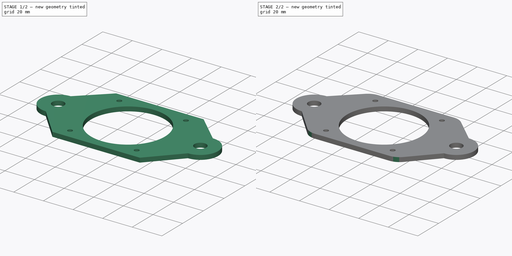
[diagram: build sequence overview — one tinted view per stage of 2, left to right]
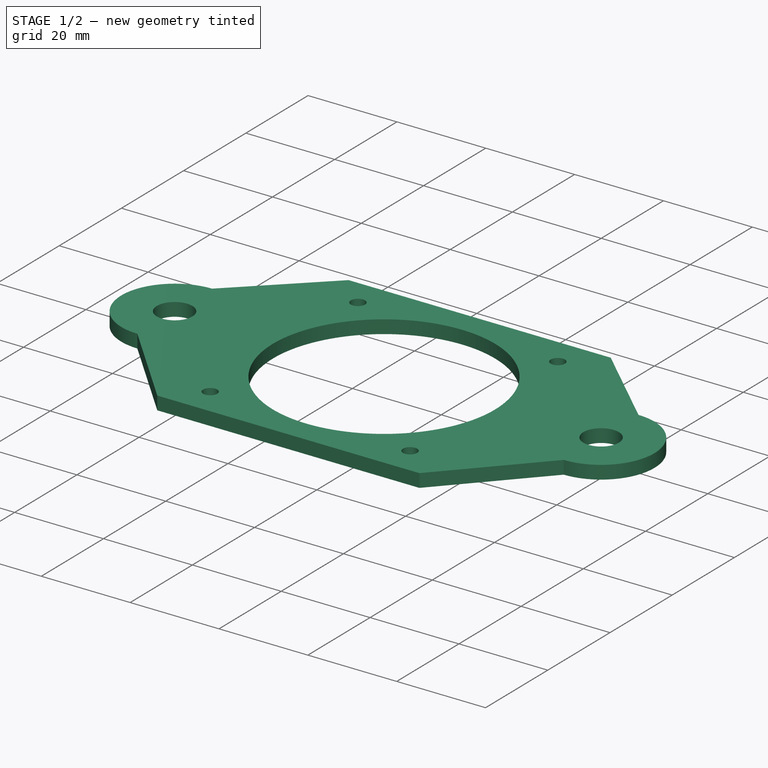
[diagram: stage 1 of 2 — iso view after this stage's code; geometry added in this stage tinted green]
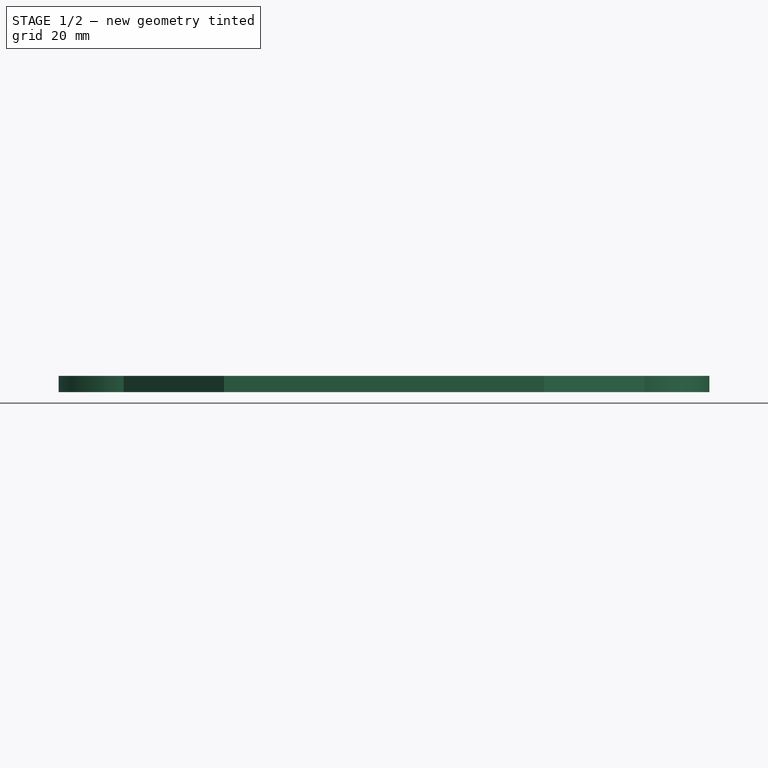
[diagram: stage 1 of 2 — front view after this stage's code; geometry added in this stage tinted green]
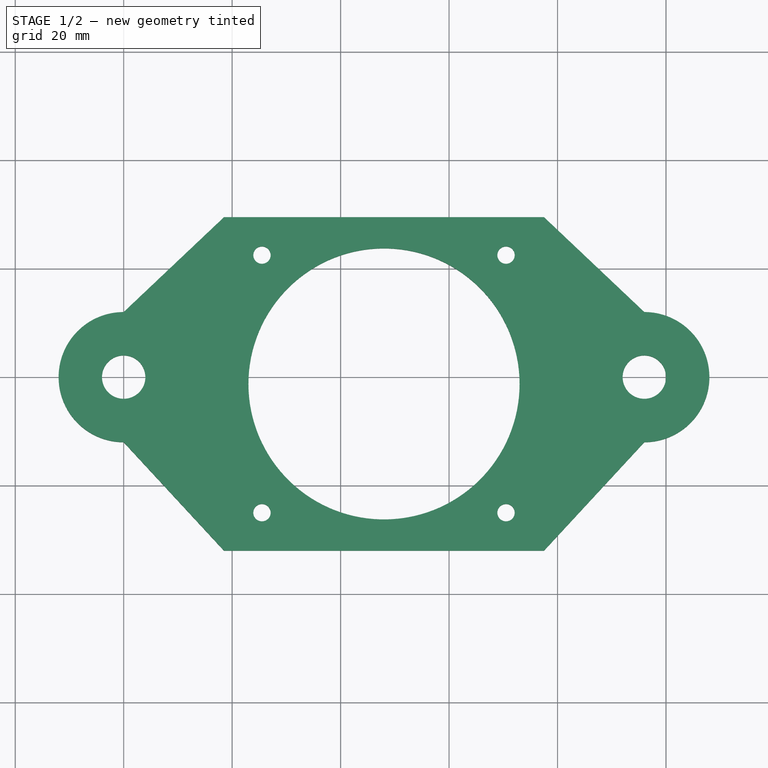
[diagram: stage 1 of 2 — top view after this stage's code; geometry added in this stage tinted green]
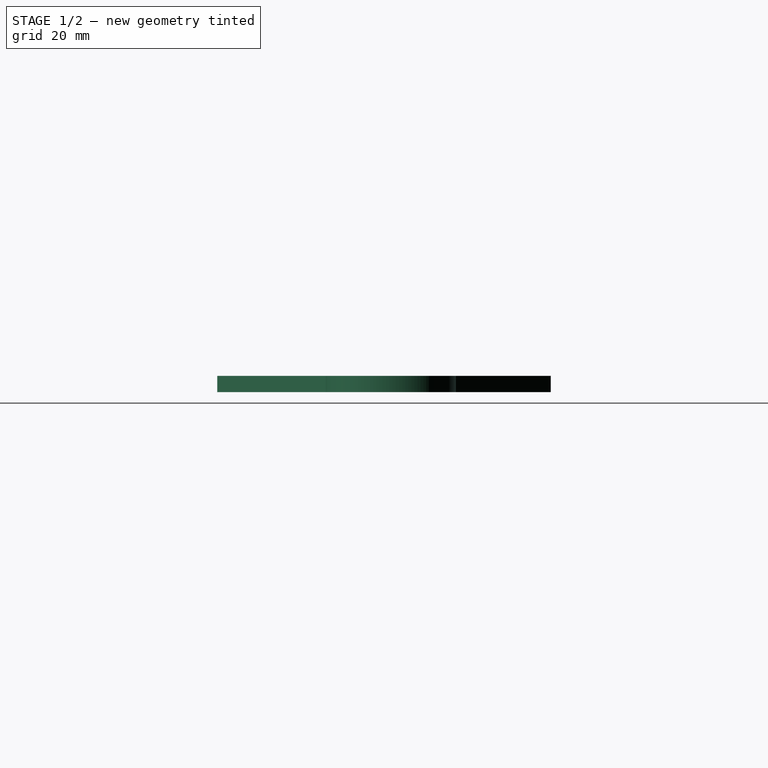
[diagram: stage 1 of 2 — right view after this stage's code; geometry added in this stage tinted green]
FCSTD DOCUMENT  (FreeCAD 0.19R24276 (Git))
Label: Pcb_encoder_holder
License: All rights reserved
LicenseURL: http://en.wikipedia.org/wiki/All_rights_reserved
objects: Sketcher::SketchObject×1, PartDesign::Pad×1, PartDesign::Fillet×1, PartDesign::Body×1
note: 6 computed .brp shape members not serialized (recipe doc carries the construction recipe); baked Part::Feature solids carry a one-line shape summary decoded from their .brp

FEATURE [Sketcher::SketchObject] Sketch
  FullyConstrained = true
  MapMode = 5
  Support = -> [XY_Plane]
  sketch-geometry (20):
    g0: Circle CenterX=-3.7e-15 CenterY=0 CenterZ=0 NormalX=0 NormalY=0 NormalZ=1 AngleXU=0 Radius=4
    g1: Circle CenterX=96 CenterY=0 CenterZ=0 NormalX=0 NormalY=0 NormalZ=1 AngleXU=0 Radius=4
    g2: ArcOfCircle CenterX=-3.7e-15 CenterY=0 CenterZ=0 NormalX=0 NormalY=0 NormalZ=1 AngleXU=0 Radius=12 StartAngle=1.5708 EndAngle=4.71239
    g3: ArcOfCircle CenterX=96 CenterY=0 CenterZ=0 NormalX=0 NormalY=0 NormalZ=1 AngleXU=0 Radius=12 StartAngle=4.71239 EndAngle=7.85398
    g4: Circle CenterX=25.5 CenterY=-25 CenterZ=0 NormalX=0 NormalY=0 NormalZ=1 AngleXU=0 Radius=1.6
    g5: Circle CenterX=70.5 CenterY=-25 CenterZ=0 NormalX=0 NormalY=0 NormalZ=1 AngleXU=0 Radius=1.6
    g6: LineSegment StartX=48 StartY=-25 StartZ=0 EndX=48 EndY=0 EndZ=0
    g7: Circle CenterX=25.5 CenterY=22.5 CenterZ=0 NormalX=0 NormalY=0 NormalZ=1 AngleXU=0 Radius=1.6
    g8: Circle CenterX=70.5 CenterY=22.5 CenterZ=0 NormalX=0 NormalY=0 NormalZ=1 AngleXU=0 Radius=1.6
    g9: LineSegment StartX=18.5 StartY=29.5 StartZ=0 EndX=77.5 EndY=29.5 EndZ=0
    g10: LineSegment StartX=77.5 StartY=29.5 StartZ=0 EndX=77.5 EndY=-32 EndZ=0
    g11: LineSegment StartX=77.5 StartY=-32 StartZ=0 EndX=18.5 EndY=-32 EndZ=0
    g12: LineSegment StartX=18.5 StartY=-32 StartZ=0 EndX=18.5 EndY=29.5 EndZ=0
    g13: LineSegment StartX=25.5 StartY=-1.25 StartZ=0 EndX=48 EndY=-1.25 EndZ=0
    g14: LineSegment StartX=18.5 StartY=29.5 StartZ=0 EndX=-3.6e-15 EndY=12 EndZ=0
    g15: LineSegment StartX=-3.7e-15 StartY=-12 StartZ=0 EndX=18.5 EndY=-32 EndZ=0
    g16: LineSegment StartX=-3.7e-15 StartY=0 StartZ=0 EndX=-3.7e-15 EndY=-12 EndZ=0
    g17: LineSegment StartX=77.5 StartY=29.5 StartZ=0 EndX=96 EndY=12 EndZ=0
    g18: LineSegment StartX=96 StartY=-12 StartZ=0 EndX=77.5 EndY=-32 EndZ=0
    g19: Circle CenterX=48 CenterY=-1.25 CenterZ=0 NormalX=0 NormalY=0 NormalZ=1 AngleXU=0 Radius=25
  constraints (53):
    c: Coincident(g0,g-1)
    c: PointOnObject(g1,g-1)
    c: Diameter(g0) = 8
    c: Equal(g0,g1)
    c: DistanceX(g0,g1) = 96
    c: Coincident(g2,g0)
    c: Diameter(g2) = 24
    c: Coincident(g3,g1)
    c: Equal(g3,g2)
    c: Horizontal(g4,g5)
    c: DistanceX(g4,g5) = 45
    c: Vertical(g6)
    c: Symmetric(g4,g5,g6)
    c: Symmetric(g0,g1,g6)
    c: Diameter(g4) = 3.2
    c: Equal(g4,g5)
    c: DistanceY(g5,g1) = 25
    c: Diameter(g7) = 3.2
    c: Equal(g7,g8)
    c: Horizontal(g7,g8)
    c: Vertical(g8,g5)
    c: Vertical(g7,g4)
    c: DistanceY(g5,g8) = 47.5
    c: Coincident(g9,g10)
    c: Coincident(g10,g11)
    c: Coincident(g11,g12)
    c: Coincident(g12,g9)
    c: Horizontal(g9)
    c: Horizontal(g11)
    c: Vertical(g10)
    c: Vertical(g12)
    c: Horizontal(g13)
    c: Symmetric(g4,g7,g13)
    c: PointOnObject(g13,g6)
    c: Symmetric(g9,g10,g13)
    c: DistanceY(g8,g9) = 7
    c: DistanceX(g5,g10) = 7
    c: Coincident(g14,g9)
    c: Coincident(g15,g11)
    c: Coincident(g16,g0)
    c: Coincident(g16,g15)
    c: Vertical(g16)
    c: Vertical(g14,g15)
    c: Coincident(g17,g9)
    c: Coincident(g18,g10)
    c: Vertical(g18,g1)
    c: Vertical(g1,g17)
    c: Coincident(g19,g13)
    c: Diameter(g19) = 50
    c: Coincident(g2,g14)
    c: Coincident(g2,g15)
    c: Coincident(g3,g18)
    c: Coincident(g3,g17)
FEATURE [PartDesign::Pad] Pad
  Direction = (1,1,1)
  Length = 3
  Length2 = 100
  Profile = -> Sketch
  Type = 0
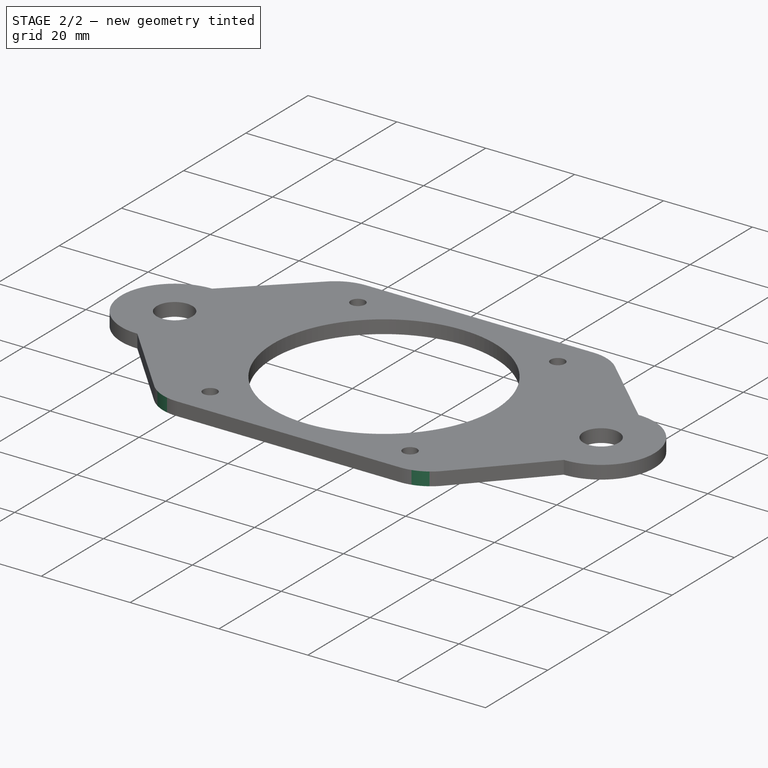
[diagram: stage 2 of 2 — iso view after this stage's code; geometry added in this stage tinted green]
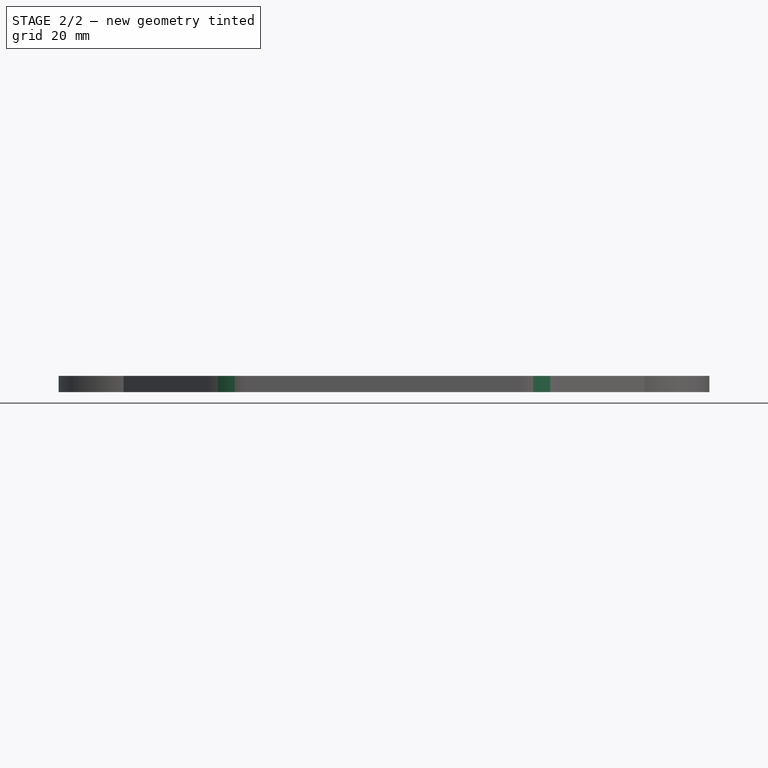
[diagram: stage 2 of 2 — front view after this stage's code; geometry added in this stage tinted green]
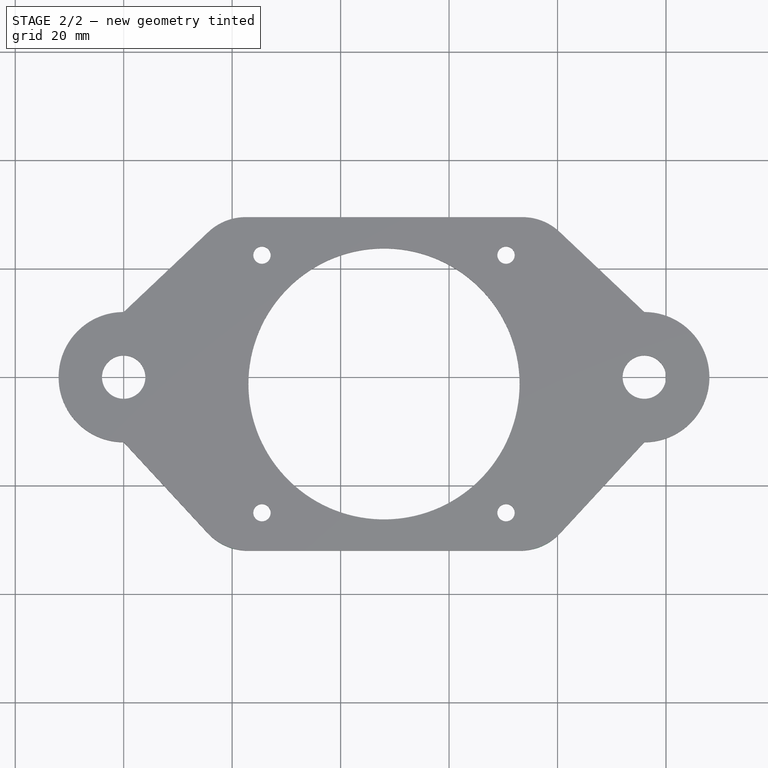
[diagram: stage 2 of 2 — top view after this stage's code; geometry added in this stage tinted green]
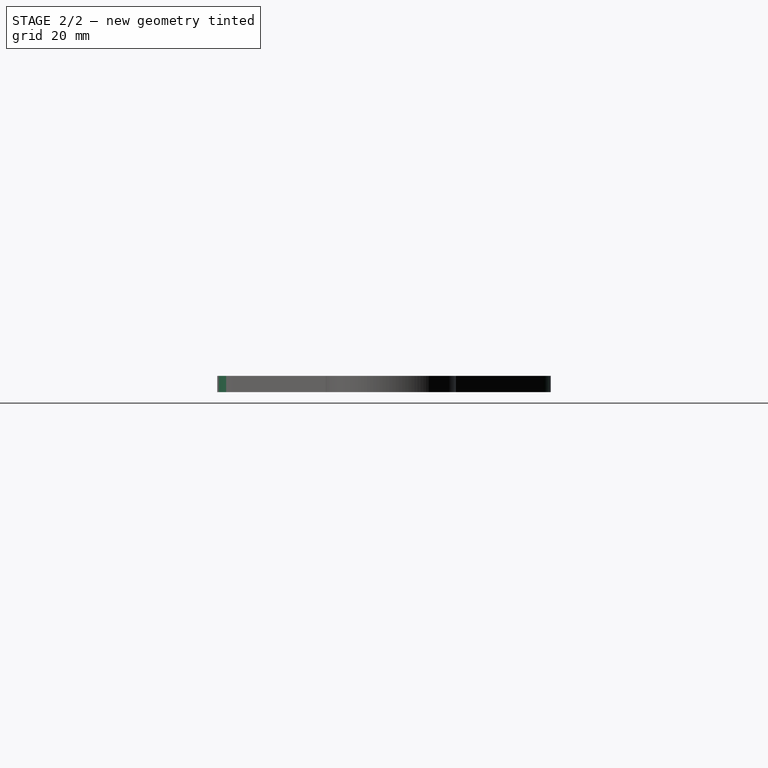
[diagram: stage 2 of 2 — right view after this stage's code; geometry added in this stage tinted green]
FEATURE [PartDesign::Fillet] Fillet
  Base = -> Pad [Edge11,Edge8,Edge20,Edge1]
  BaseFeature = -> Pad
  Radius = 10
  SupportTransform = false
FEATURE [PartDesign::Body] Body
  Group = -> [Sketch,Pad,Fillet]
  Origin = -> Origin
  Tip = -> Fillet
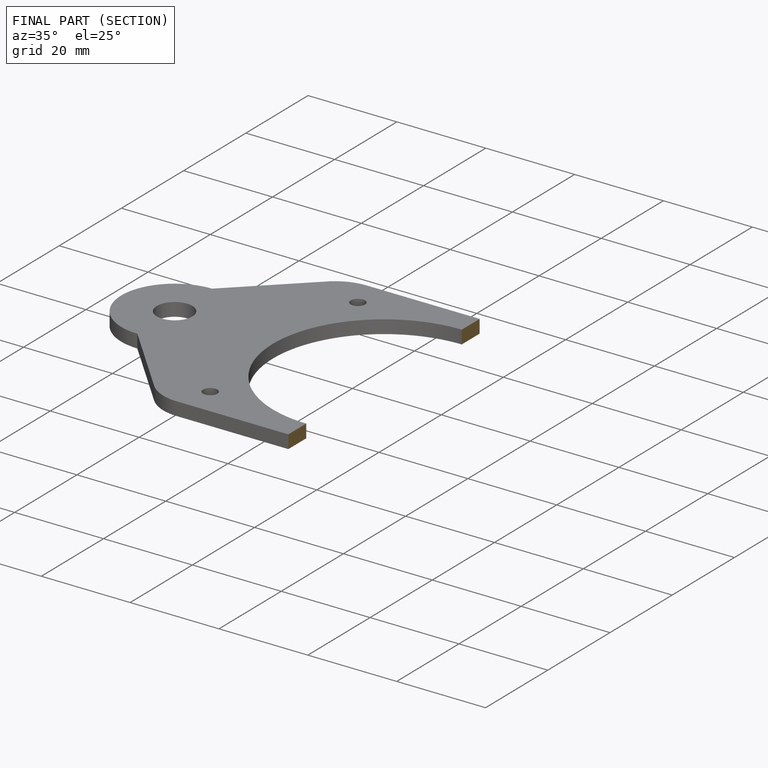
[diagram: finished part — half-section view (interior)]
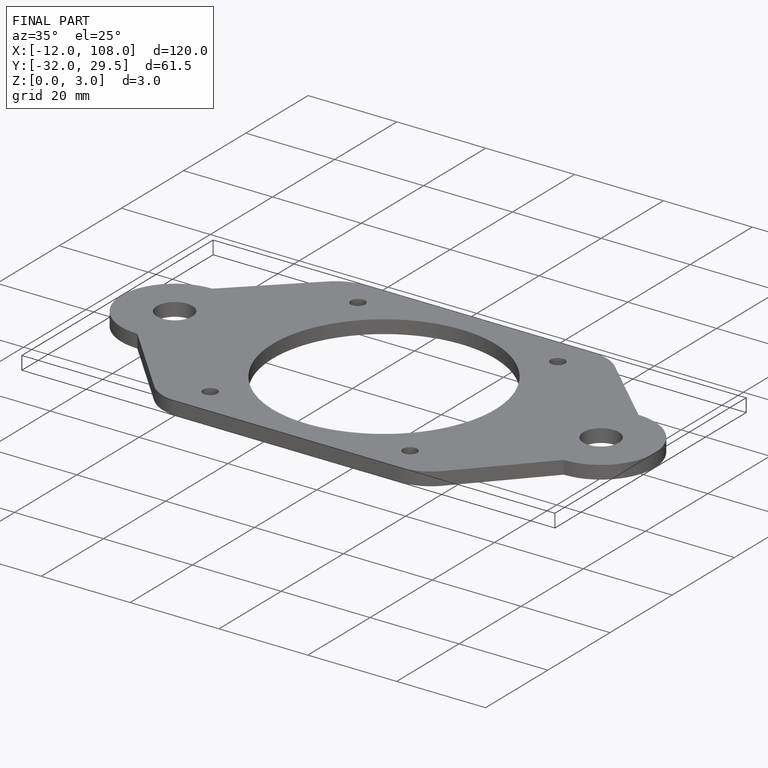
[diagram: finished part — iso view with bounding-box wireframe]
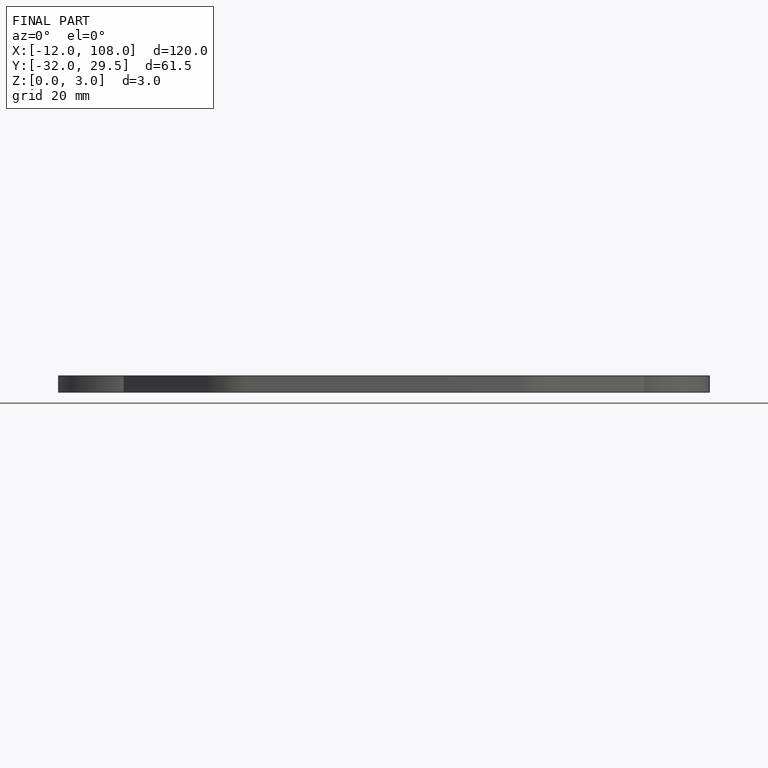
[diagram: finished part — front view with bounding-box wireframe]
